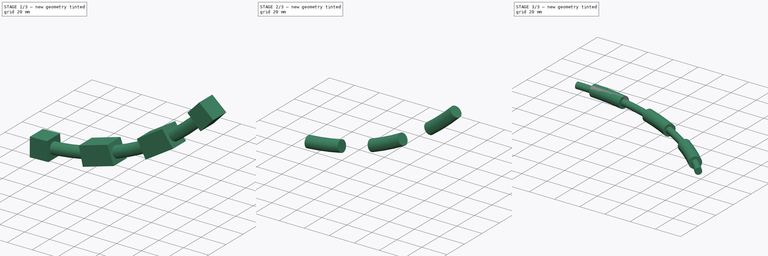
[diagram: build sequence overview — one tinted view per stage of 3, left to right]
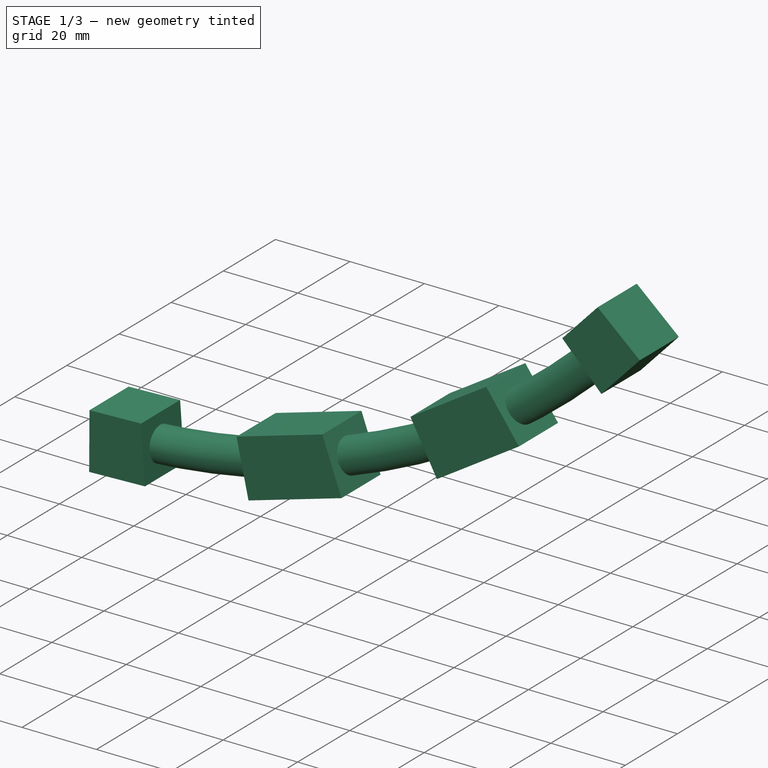
[diagram: stage 1 of 3 — iso view after this stage's code; geometry added in this stage tinted green]
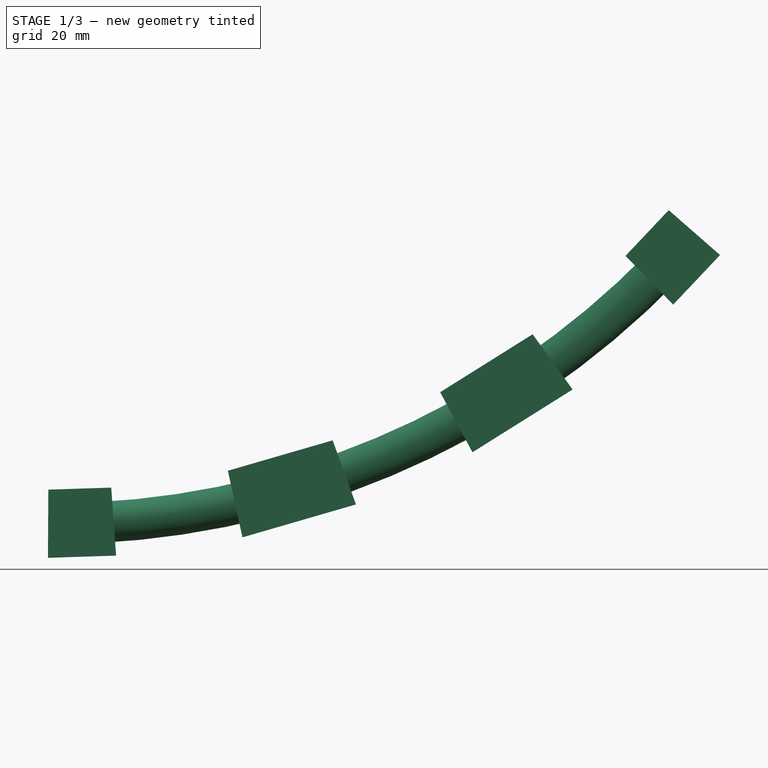
[diagram: stage 1 of 3 — front view after this stage's code; geometry added in this stage tinted green]
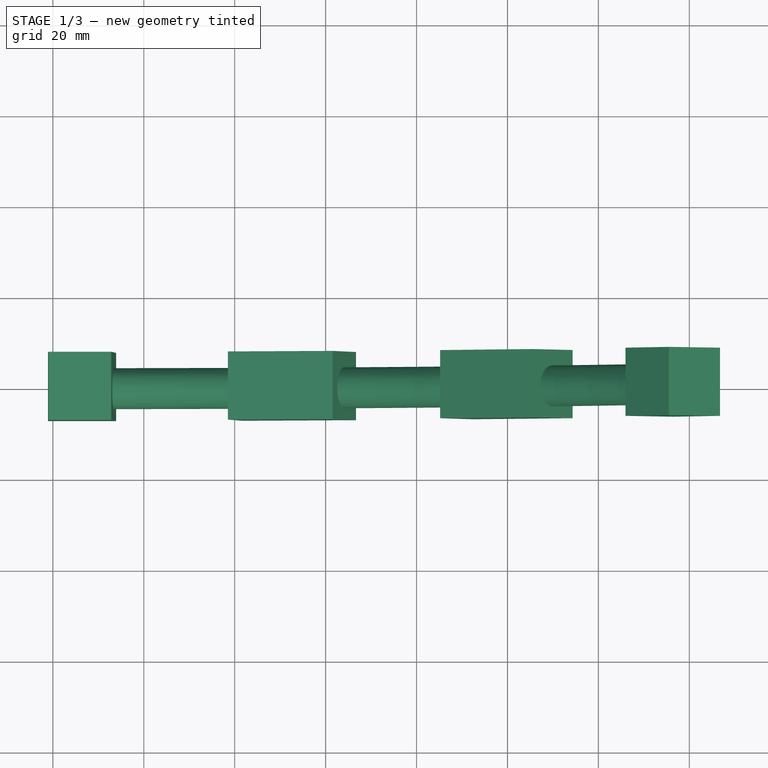
[diagram: stage 1 of 3 — top view after this stage's code; geometry added in this stage tinted green]
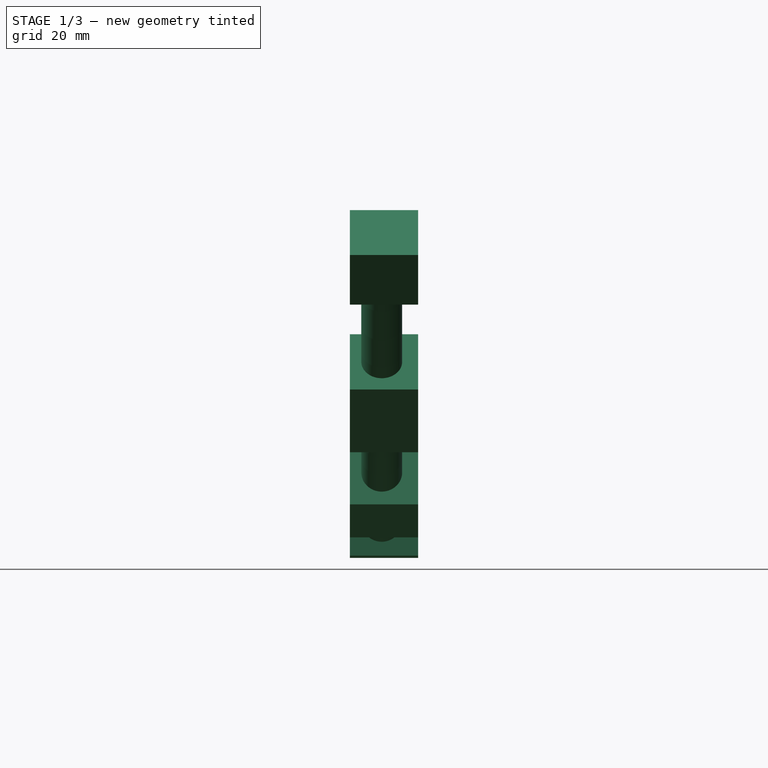
[diagram: stage 1 of 3 — right view after this stage's code; geometry added in this stage tinted green]
FCSTD DOCUMENT  (FreeCAD 0.14R3691 (Git))
Label: MotorHolder
License: CC-BY 3.0
LicenseURL: http://creativecommons.org/licenses/by/3.0/
objects: Sketcher::SketchObject×4, Part::Sweep×2, Part::Extrusion×1, Part::Cut×1, Part::MultiFuse×1
note: 9 computed .brp shape members not serialized (recipe doc carries the construction recipe); baked Part::Feature solids carry a one-line shape summary decoded from their .brp

FEATURE [Part::Sweep] Sweep001
  Frenet = false
  Sections = -> [Sketch002]
  Solid = true
  Spine = -> Sketch [Edge1]
  Transition = 1
FEATURE [Sketcher::SketchObject] Sketch003
  Placement = pos=(0,-7,0) rot=(1,0,0;1.5708rad)
  sketch-geometry (25):
    g0: ArcOfCircle [constr] CenterX=0 CenterY=187.481 CenterZ=0 NormalX=0 NormalY=0 NormalZ=1 Radius=187.481 StartAngle=4.71239 EndAngle=5.55922
    g1: LineSegment StartX=-1.08334 StartY=-7.49699 StartZ=0 EndX=13.9085 EndY=-7.0033 EndZ=0
    g2: LineSegment StartX=13.9085 StartY=-7.0033 StartZ=0 EndX=12.8385 EndY=7.95849 EndZ=0
    g3: LineSegment StartX=12.8385 StartY=7.95849 StartZ=0 EndX=-1 EndY=7.50278 EndZ=0
    g4: LineSegment StartX=-1 StartY=7.50278 StartZ=0 EndX=-1.08334 EndY=-7.49699 EndZ=0
    g5: LineSegment StartX=41.7002 StartY=-2.98866 StartZ=0 EndX=66.6714 EndY=4.25295 EndZ=0
    g6: LineSegment StartX=66.6714 StartY=4.25295 StartZ=0 EndX=61.5424 EndY=18.3488 EndZ=0
    g7: LineSegment StartX=61.5424 StartY=18.3488 StartZ=0 EndX=38.4922 EndY=11.6643 EndZ=0
    g8: LineSegment StartX=38.4922 StartY=11.6643 StartZ=0 EndX=41.7002 EndY=-2.98866 EndZ=0
    g9: LineSegment StartX=92.2991 StartY=15.7298 StartZ=0 EndX=114.33 EndY=29.5371 EndZ=0
    g10: LineSegment StartX=114.33 StartY=29.5371 StartZ=0 EndX=105.535 EndY=41.6878 EndZ=0
    g11: LineSegment StartX=105.535 StartY=41.6878 StartZ=0 EndX=85.1985 EndY=28.9427 EndZ=0
    g12: LineSegment StartX=85.1985 StartY=28.9427 StartZ=0 EndX=92.2991 EndY=15.7298 EndZ=0
    g13: GeomPoint [constr] X=-1.04167 Y=0.00289385 Z=0
    g14: GeomPoint [constr] X=13.3735 Y=0.477593 Z=0
    g15: GeomPoint [constr] X=40.0962 Y=4.33781 Z=0
    g16: GeomPoint [constr] X=64.1069 Y=11.3009 Z=0
    g17: GeomPoint [constr] X=88.7488 Y=22.3362 Z=0
    g18: GeomPoint [constr] X=109.932 Y=35.6125 Z=0
    g19: LineSegment StartX=125.963 StartY=58.9257 StartZ=0 EndX=136.461 EndY=48.2116 EndZ=0
    g20: LineSegment StartX=136.461 StartY=48.2116 StartZ=0 EndX=146.764 EndY=59.114 EndZ=0
    g21: LineSegment StartX=146.764 StartY=59.114 StartZ=0 EndX=135.473 EndY=68.9894 EndZ=0
    g22: LineSegment StartX=135.473 StartY=68.9894 StartZ=0 EndX=125.963 EndY=58.9257 EndZ=0
    g23: GeomPoint [constr] X=131.212 Y=53.5687 Z=0
    g24: GeomPoint [constr] X=141.118 Y=64.0517 Z=0
  constraints (60):
    c: Coincident(g0,g-1)
    c: DistanceX(g0) = 140.458
    c: Radius(g0) = 187.481
    c: PointOnObject(g0,g-2)
    c: Coincident(g1,g2)
    c: Coincident(g2,g3)
    c: Coincident(g3,g4)
    c: Coincident(g4,g1)
    c: Coincident(g5,g6)
    c: Coincident(g6,g7)
    c: Coincident(g7,g8)
    c: Coincident(g8,g5)
    c: Coincident(g9,g10)
    c: Coincident(g10,g11)
    c: Coincident(g11,g12)
    c: Coincident(g12,g9)
    c: Perpendicular(g4,g0)
    c: Perpendicular(g2,g0)
    c: Perpendicular(g8,g0)
    c: Perpendicular(g6,g0)
    c: Perpendicular(g12,g0)
    c: Perpendicular(g10,g0)
    c: Equal(g12,g10)
    c: Equal(g10,g6)
    c: Equal(g6,g8)
    c: Equal(g8,g2)
    c: Equal(g2,g4)
    c: Symmetric(g3,g1,g13)
    c: PointOnObject(g14,g0)
    c: Symmetric(g1,g2,g14)
    c: PointOnObject(g15,g0)
    c: Symmetric(g7,g5,g15)
    c: PointOnObject(g16,g0)
    c: Symmetric(g5,g6,g16)
    c: PointOnObject(g17,g0)
    c: PointOnObject(g18,g0)
    c: Symmetric(g10,g9,g18)
    c: PointOnObject(g13,g0)
    c: Distance(g1) = 15
    c: Distance(g14,g15) = 27
    c: Distance(g6) = 15
    c: Symmetric(g11,g9,g17)
    c: Distance(g17,g16) = 27
    c: Equal(g5,g9)
    c: DistanceX(g3) = -1
    c: Distance(g15,g16) = 25
    c: Coincident(g19,g20)
    c: Coincident(g20,g21)
    c: Coincident(g21,g22)
    c: Coincident(g22,g19)
    c: Perpendicular(g19,g0)
    c: Perpendicular(g21,g0)
    c: Equal(g1,g20)
    c: Equal(g21,g10)
    c: PointOnObject(g23,g0)
    c: PointOnObject(g24,g0)
    c: Equal(g19,g21)
    c: Symmetric(g21,g20,g24)
    c: Symmetric(g19,g19,g23)
    c: Distance(g0,g21) = 1
FEATURE [Part::Extrusion] Extrude
  Base = -> Sketch003
  Dir = (0,15,0)
  Solid = true
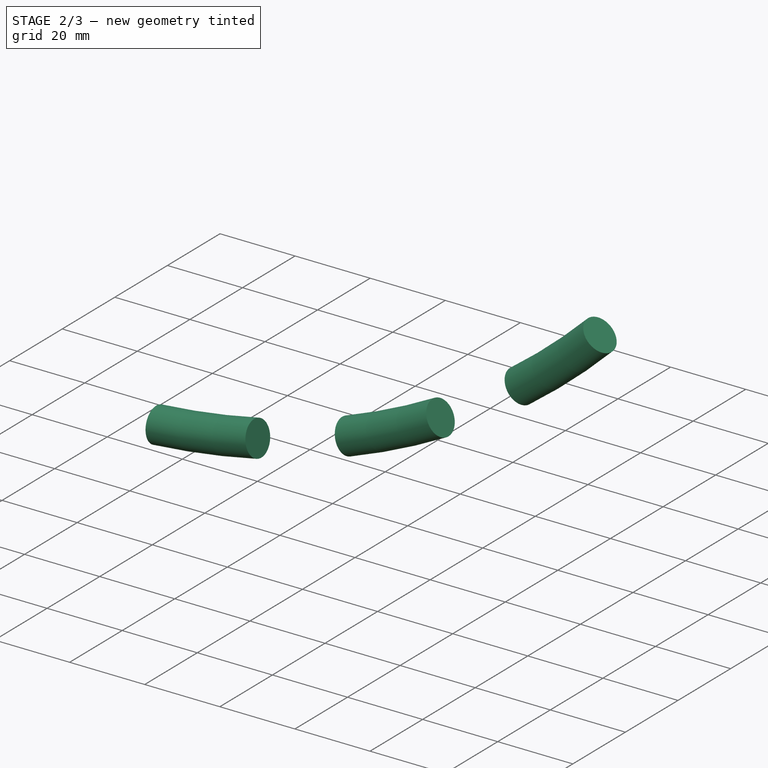
[diagram: stage 2 of 3 — iso view after this stage's code; geometry added in this stage tinted green]
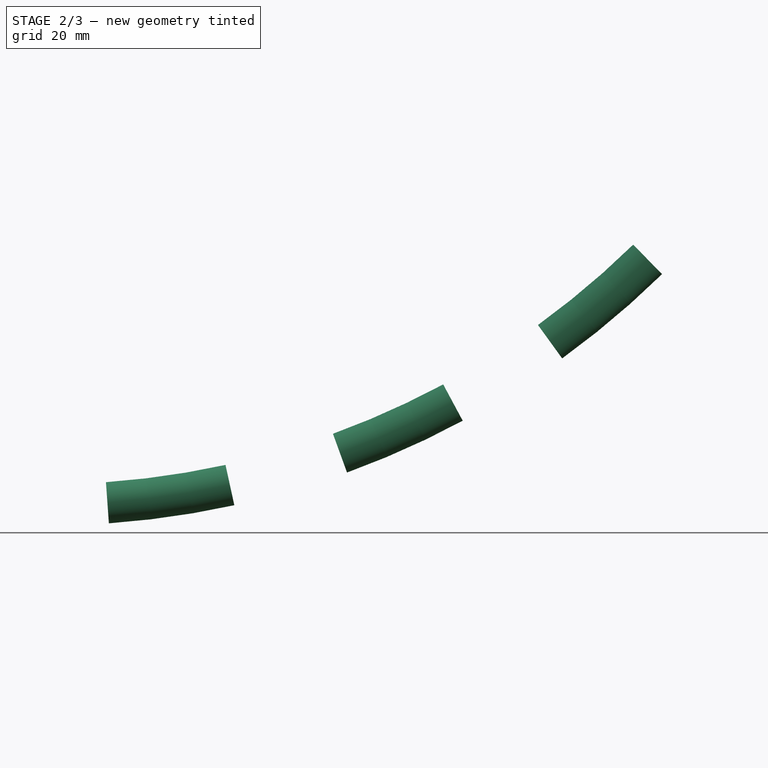
[diagram: stage 2 of 3 — front view after this stage's code; geometry added in this stage tinted green]
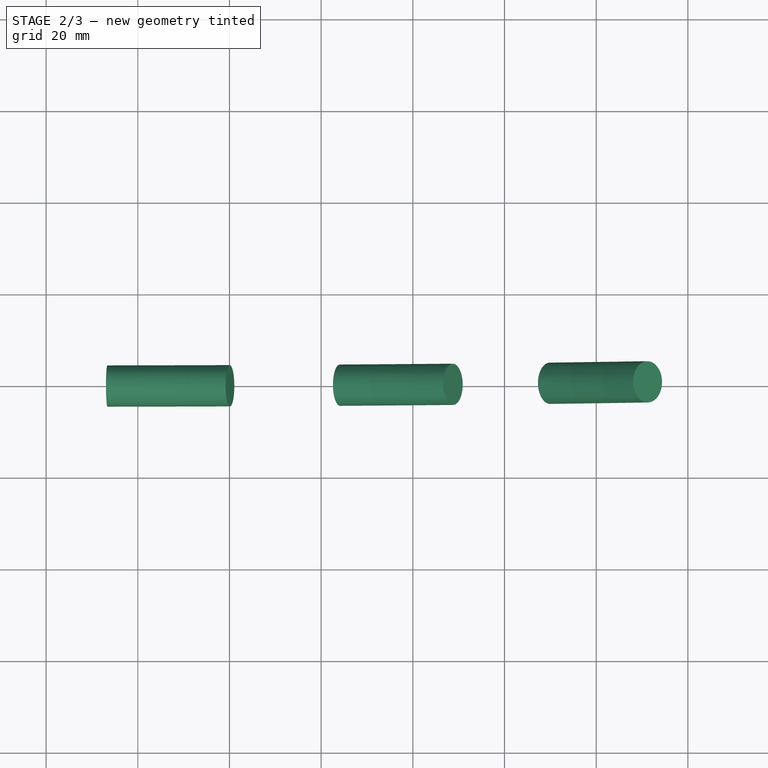
[diagram: stage 2 of 3 — top view after this stage's code; geometry added in this stage tinted green]
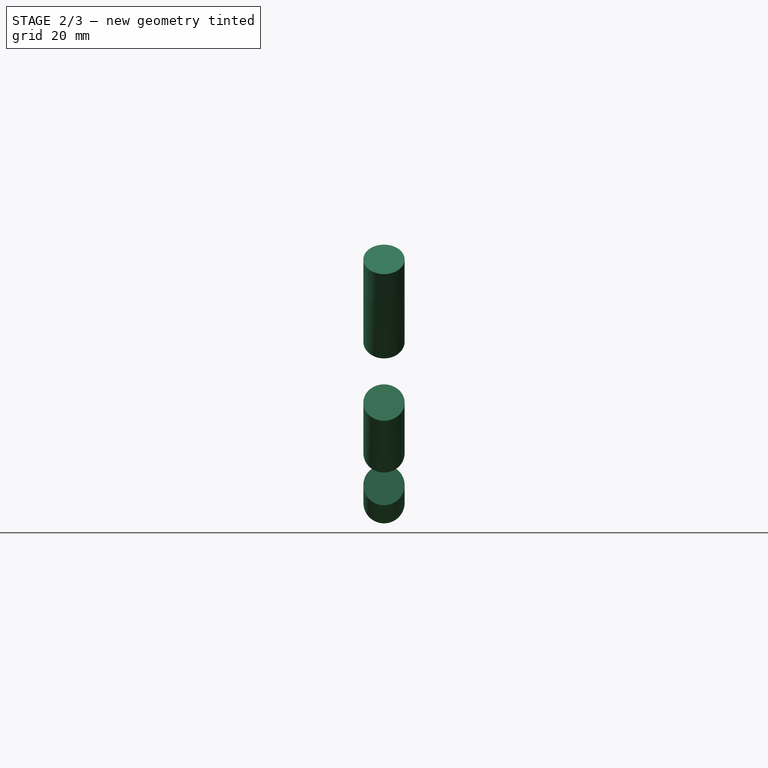
[diagram: stage 2 of 3 — right view after this stage's code; geometry added in this stage tinted green]
FEATURE [Part::Cut] Cut
  Base = -> Sweep001
  Tool = -> Extrude
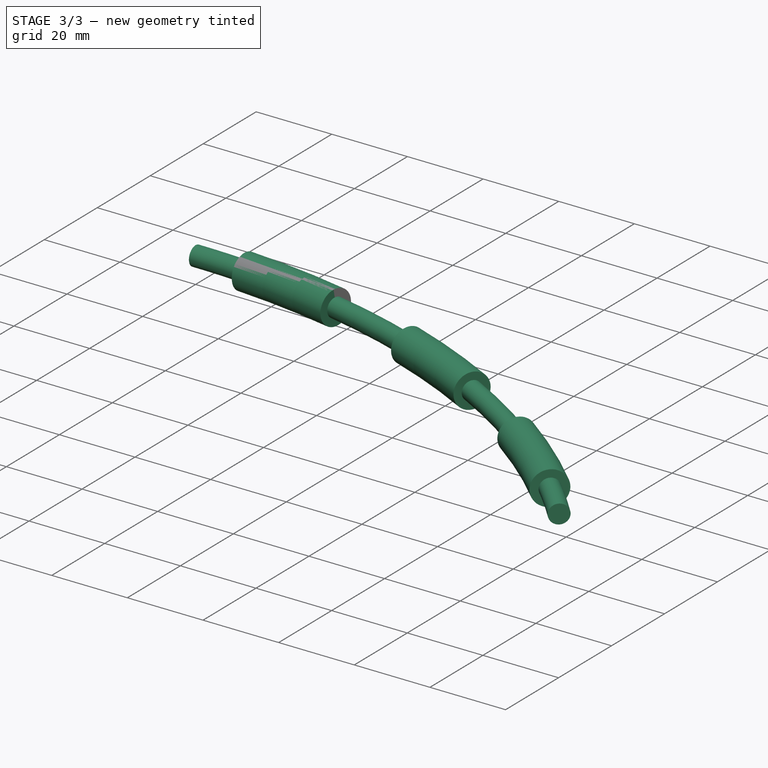
[diagram: stage 3 of 3 — iso view after this stage's code; geometry added in this stage tinted green]
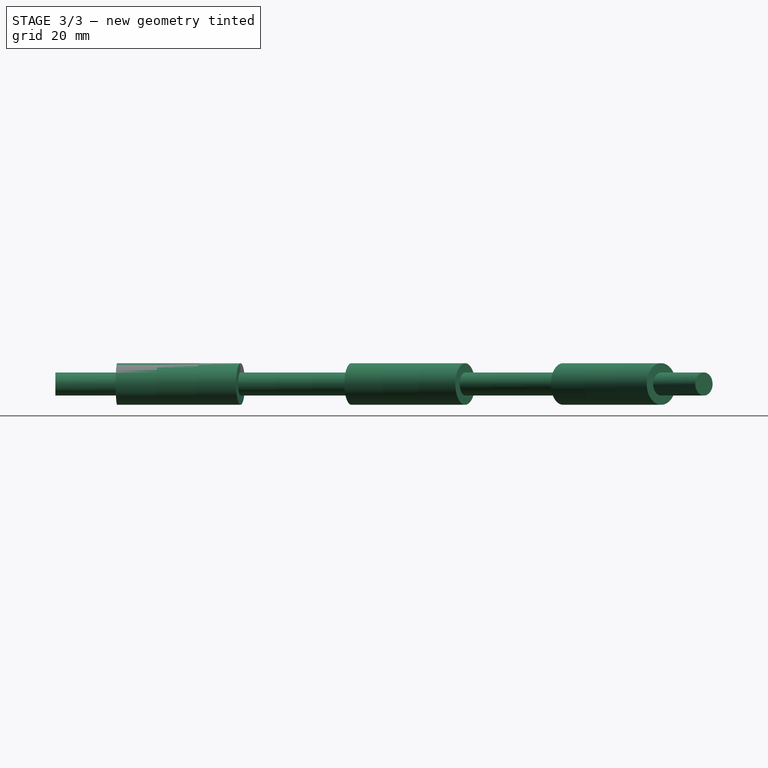
[diagram: stage 3 of 3 — front view after this stage's code; geometry added in this stage tinted green]
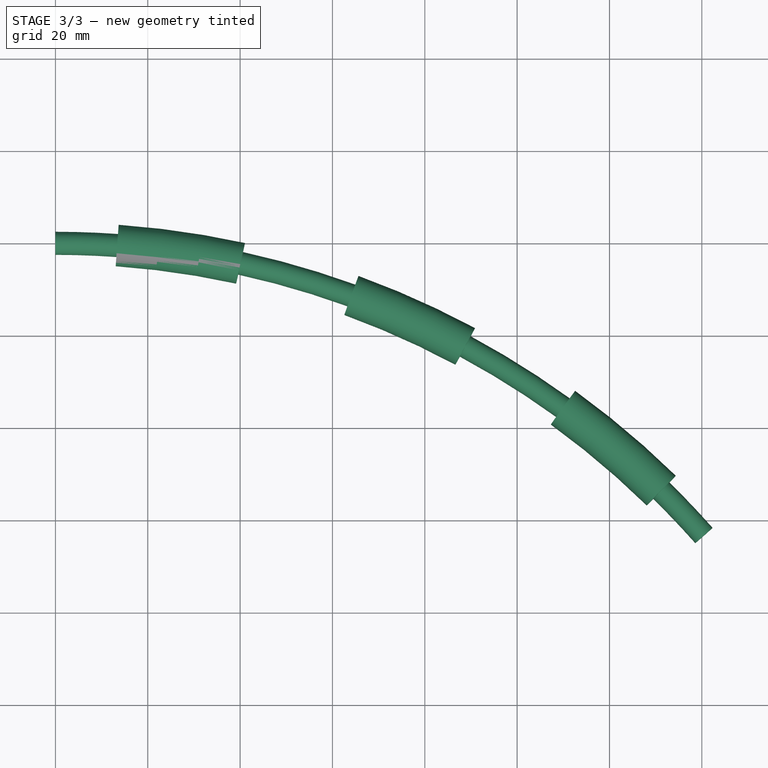
[diagram: stage 3 of 3 — top view after this stage's code; geometry added in this stage tinted green]
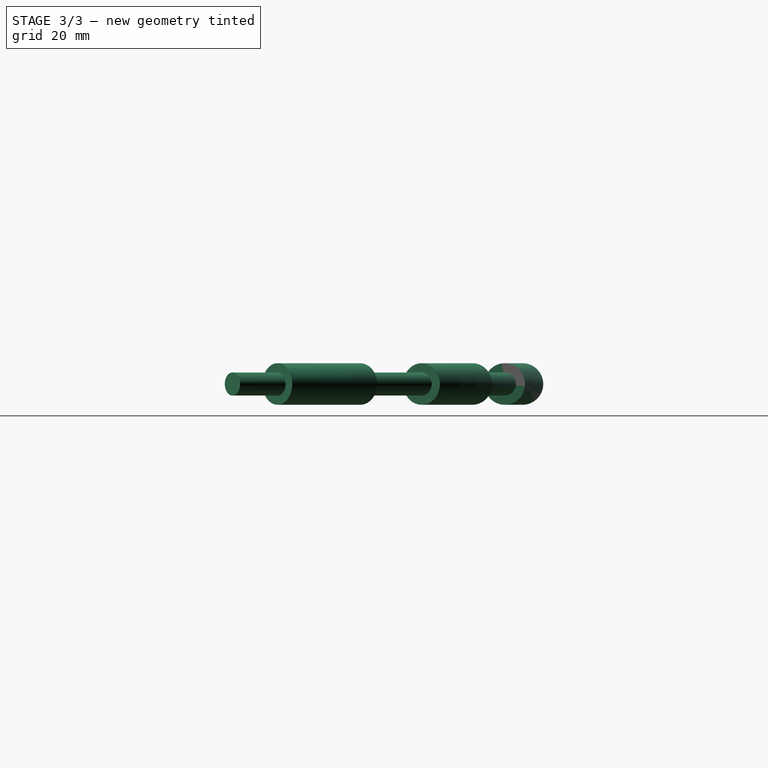
[diagram: stage 3 of 3 — right view after this stage's code; geometry added in this stage tinted green]
FEATURE [Sketcher::SketchObject] Sketch  label="Curve"
  Placement = pos=(0,0,0) rot=(1,0,0;1.5708rad)
  sketch-geometry (1):
    g0: ArcOfCircle CenterX=0 CenterY=187.481 CenterZ=0 NormalX=0 NormalY=0 NormalZ=1 Radius=187.481 StartAngle=4.71239 EndAngle=5.55922
  constraints (4):
    c: Coincident(g0,g-1)
    c: DistanceX(g0) = 140.458
    c: Radius(g0) = 187.481
    c: PointOnObject(g0,g-2)
FEATURE [Sketcher::SketchObject] Sketch001
  Placement = pos=(0,0,0) rot=(0.57735,-0.57735,-0.57735;2.0944rad)
  sketch-geometry (1):
    g0: Circle CenterX=0 CenterY=0 CenterZ=0 NormalX=0 NormalY=0 NormalZ=1 Radius=2.5
  constraints (2):
    c: Coincident(g0,g-1)
    c: Radius(g0) = 2.5
FEATURE [Sketcher::SketchObject] Sketch002
  Placement = pos=(0,0,0) rot=(0.57735,-0.57735,-0.57735;2.0944rad)
  sketch-geometry (1):
    g0: Circle CenterX=0 CenterY=0 CenterZ=0 NormalX=0 NormalY=0 NormalZ=1 Radius=4.5
  constraints (2):
    c: Coincident(g0,g-1)
    c: Radius(g0) = 4.5
FEATURE [Part::Sweep] Sweep
  Frenet = false
  Sections = -> [Sketch001]
  Solid = true
  Spine = -> Sketch [Edge1]
  Transition = 1
FEATURE [Part::MultiFuse] Fusion
  Placement = pos=(0,0,0) rot=(1,0,0;1.5708rad)
  Shapes = -> [Sweep,Cut]
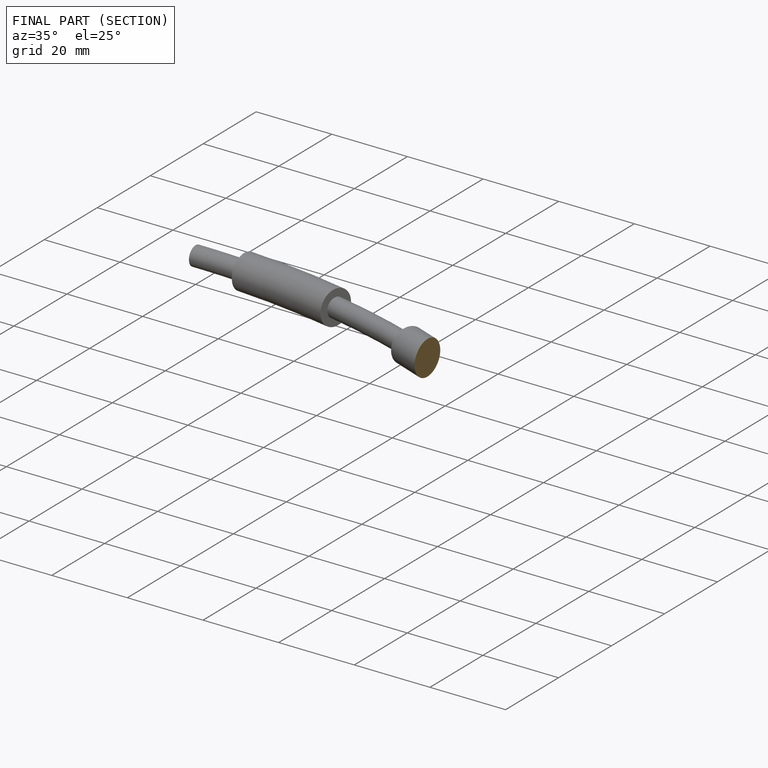
[diagram: finished part — half-section view (interior)]
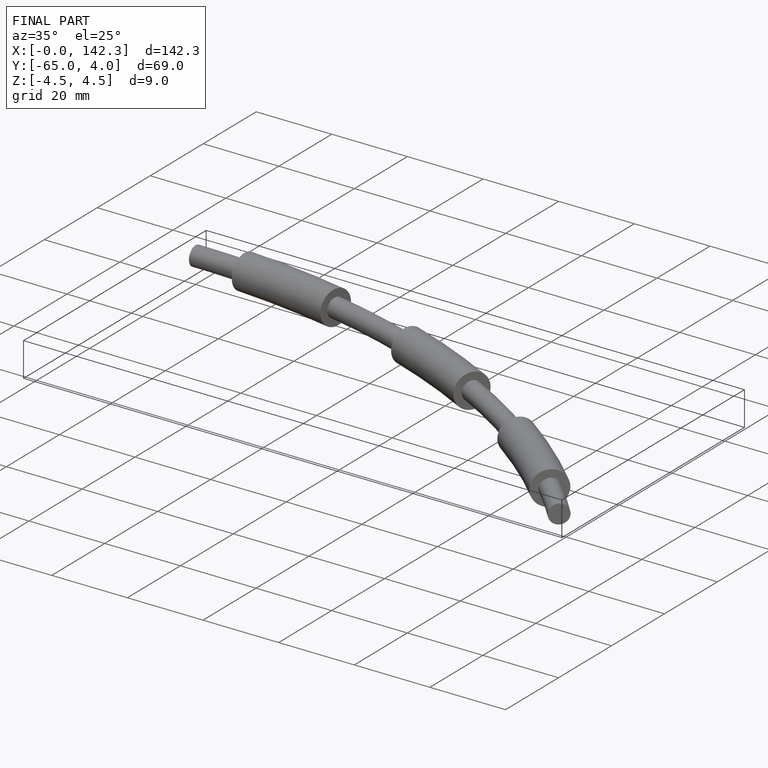
[diagram: finished part — iso view with bounding-box wireframe]
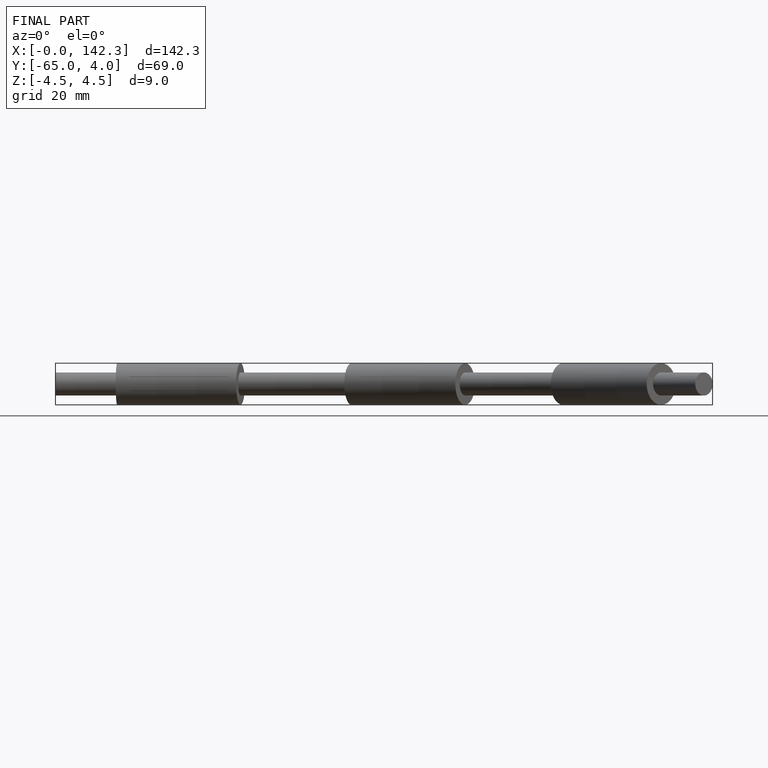
[diagram: finished part — front view with bounding-box wireframe]
